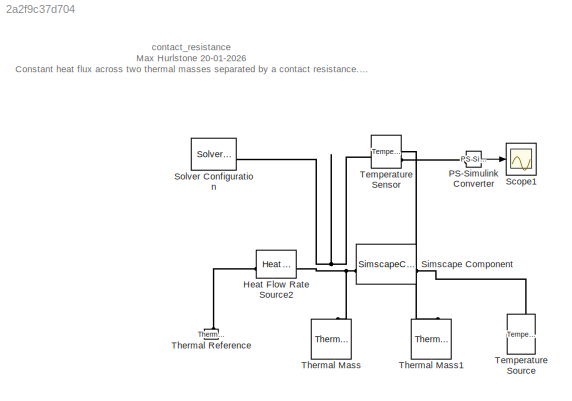
MODEL slx_2a2f9c37d704
KIND model
CONFIG AbsTol = auto
CONFIG EnableMultiTasking = off
CONFIG FixedStep = auto
CONFIG MaxStep = auto
CONFIG MinStep = auto
CONFIG RelTol = 1e-3
CONFIG SampleTimeConstraint = Unconstrained
CONFIG SolverName = VariableStepAuto
CONFIG StartTime = 0.0
CONFIG StopTime = 100
BLOCK [Reference] Heat Flow Rate Source2  REF=fl_lib/Thermal/Thermal Sources/Heat Flow Rate
Source
  SourceBlock = fl_lib/Thermal/Thermal Sources/Heat Flow Rate\nSource
  SourceType = Heat Flow Rate\nSource
BLOCK [Reference] PS-Simulink Converter  REF=nesl_utility/PS-Simulink
Converter
  SourceBlock = nesl_utility/PS-Simulink\nConverter
  SourceType = PS-Simulink\nConverter
BLOCK [Scope] Scope1
  ActiveDisplayYMaximum = 3.9903994855009515
  ActiveDisplayYMinimum = -0.44337772061121672
  DataLoggingVariableName = ScopeData1
  Floating = off
  GraphicalSettings = {"Style":{"BackgroundColor":[0.12941176470588237,0.12941176470588237,0.12941176470588237],"AxesColor":[0.07058823529411765,0.07058823529411765,0.07058823529411765],"LabelsColor":[0.8509803921568627,0.8509803921568627,0.8509803921568627],"PreserveColors":false,"Visible":[true],"LineStyle":["-"],"LineWidth":[1.5],"BarWidth":[0.9],"LineColor":["auto"],"LineFaceAlpha":[1],"LineEdgeAlpha":[1],"Marker":...<+1930ch>
  MultipleDisplayCache = [{"MaxYLimMag":3.9903994855009515,"MaxYLimReal":3.9903994855009515,"MinYLimMag":0,"MinYLimReal":-0.44337772061121672,"PlotAsMagnitudePhase":false,"ShowGrid":true,"ShowLegend":false,"Title":"%<SignalLabel>","YLabel":""}]
  NumInputPorts = 1
  ScopeFrameLocation = window
  WasSavedAsWebScope = on
  WindowPosition = [1440.000000,510.000000,560.000000,420.000000,]
BLOCK [SimscapeComponentBlock] Simscape Component
  Ac = 1
  Ac_conf = compiletime
  Ac_unit = m^2
  ClassName = contact_resistance
  ComponentPath = DLS_Simscape.Thermal.contact_resistance
  ComponentVariantNames = ["contact_resistance"]
  ComponentVariants = ["DLS_Simscape.Thermal.contact_resistance"]
  CopyFcn = simscape.sscblock.internal.componentBlockCallback(gcbh,'COPY')
  E1 = 120
  E1_conf = compiletime
  E1_unit = GPa
  E2 = 120
  E2_conf = compiletime
  E2_unit = GPa
  Fj = 2500
  Fj_conf = compiletime
  Fj_unit = N
  InternalSimscapePortConfiguration = {"Bottom":[],"Left":[{"id":"A","label":"A","type":"foundation.thermal.thermal"}],"Right":[{"id":"B","label":"B","type":"foundation.thermal.thermal"}],"Top":[]}
  MaskType = Thermal Contact Resistance
  PreCopyFcn = simscape.sscblock.internal.componentBlockCallback(gcbh,'PRECOPY')
  PreDeleteFcn = simscape.sscblock.internal.componentBlockCallback(gcbh,'PREDELETE')
  Q = 0
  Q_nominal_specify = off
  Q_nominal_unit = W
  Q_nominal_value = 1
  Q_priority = None
  Q_specify = off
  Q_unit = W
  SchemaVersion = 1
  SourceFile = DLS_Simscape.Thermal.contact_resistance
  T = 0
  T_nominal_specify = off
  T_nominal_unit = K
  T_nominal_value = 1
  T_priority = None
  T_specify = off
  T_unit = K
  k1vec = [100, 100, 100]
  k1vec_conf = compiletime
  k1vec_unit = W/(K*m)
  k2vec = [100, 100, 100]
  k2vec_conf = compiletime
  k2vec_unit = W/(K*m)
  nu1 = 0.3
  nu1_conf = compiletime
  nu1_unit = 1
  nu2 = 0.3
  nu2_conf = compiletime
  nu2_unit = 1
  ra1 = 0.000001
  ra1_conf = compiletime
  ra1_unit = m
  ra2 = 0.000001
  ra2_conf = compiletime
  ra2_unit = m
  tvec = [100, 150, 300]
  tvec_conf = compiletime
  tvec_unit = K
  vh1 = 150
  vh1_conf = compiletime
  vh1_unit = 1
  vh2 = 150
  vh2_conf = compiletime
  vh2_unit = 1
BLOCK [Reference] Solver Configuration  REF=nesl_utility/Solver
Configuration
  SourceBlock = nesl_utility/Solver\nConfiguration
  SourceType = Solver\nConfiguration
BLOCK [Reference] Temperature Sensor  REF=fl_lib/Thermal/Thermal Sensors/Temperature Sensor
  SourceBlock = fl_lib/Thermal/Thermal Sensors/Temperature Sensor
  SourceType = Temperature Sensor
BLOCK [Reference] Temperature Source  REF=fl_lib/Thermal/Thermal Sources/Temperature Source
  NameLocation = right
  SourceBlock = fl_lib/Thermal/Thermal Sources/Temperature Source
  SourceType = Temperature Source
BLOCK [Reference] Thermal Mass  REF=fl_lib/Thermal/Thermal Elements/Thermal Mass
  NameLocation = right
  SourceBlock = fl_lib/Thermal/Thermal Elements/Thermal Mass
  SourceType = Thermal Mass
BLOCK [Reference] Thermal Mass1  REF=fl_lib/Thermal/Thermal Elements/Thermal Mass
  NameLocation = right
  SourceBlock = fl_lib/Thermal/Thermal Elements/Thermal Mass
  SourceType = Thermal Mass
BLOCK [Reference] Thermal Reference  REF=fl_lib/Thermal/Thermal Elements/Thermal Reference
  NameLocation = right
  SourceBlock = fl_lib/Thermal/Thermal Elements/Thermal Reference
  SourceType = Thermal Reference
ANNOTATION (root): contact_resistance Max Hurlstone 20-01-2026 Constant heat flux across two thermal masses separated by a contact resistance. Temperature boundary condition on right edge. Compare temperature drop across contact resistance with hand calculation.
LINE PS-Simulink Converter:1 -> Scope1:1
PNET net1: Heat Flow Rate Source2:LConn1 -- Simscape Component:LConn1 -- Solver Configuration:RConn1 -- Temperature Sensor:LConn1 -- Thermal Mass:LConn1
PLINE Heat Flow Rate Source2:RConn1 -- Thermal Reference:LConn1
PLINE PS-Simulink Converter:LConn1 -- Temperature Sensor:RConn2
PNET net2: Simscape Component:RConn1 -- Temperature Sensor:RConn1 -- Temperature Source:LConn1 -- Thermal Mass1:LConn1
note: PNET lines group multi-terminal physical nets as a canonical sorted terminal list (undirected conserving connections); 2-terminal nets keep the pairwise PLINE form
